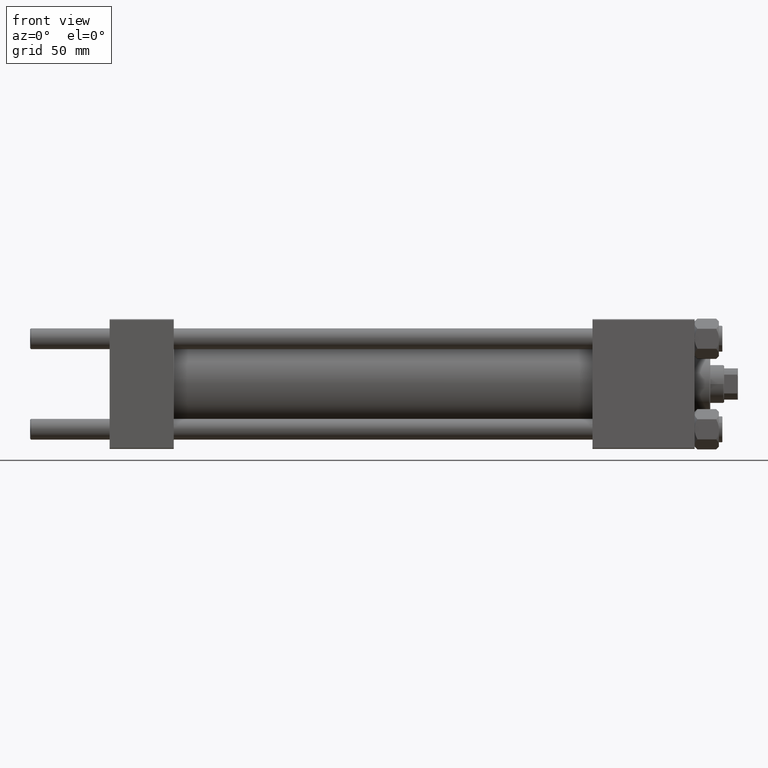
[diagram: clean part render]
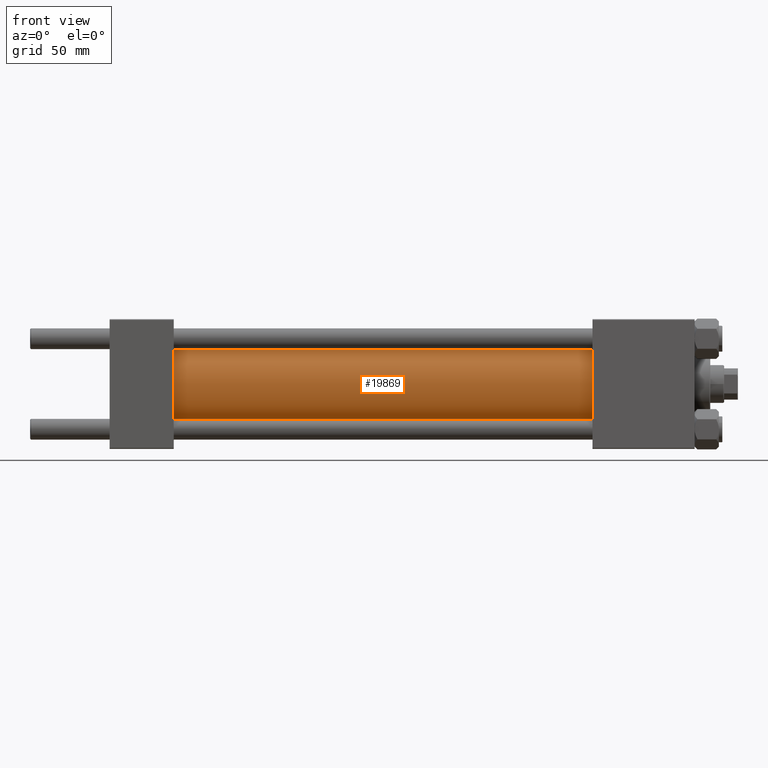
[diagram: same view with one face highlighted and labeled with its STEP entity id]
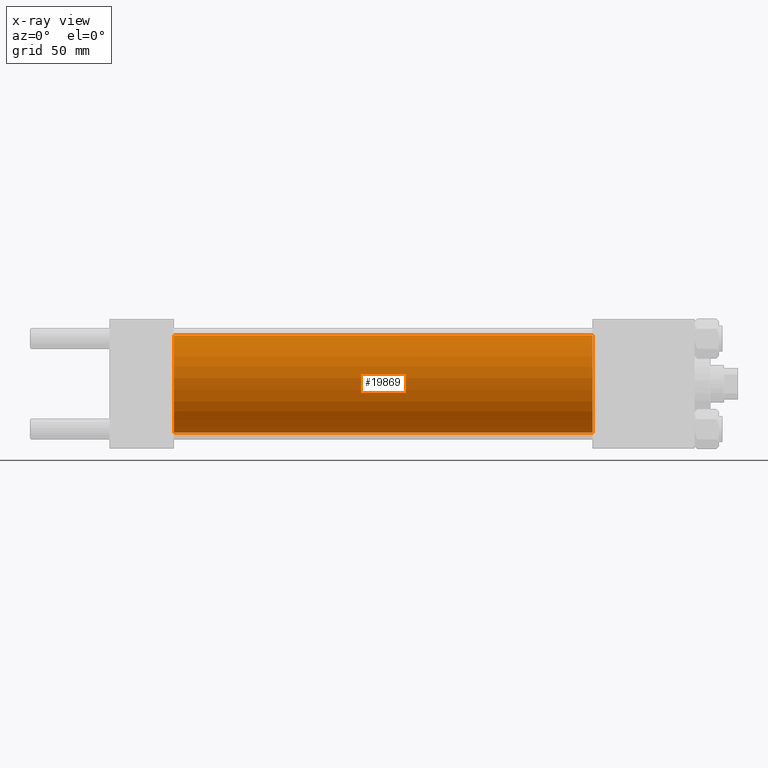
[diagram: x-ray of the same camera — body ghosted, the highlighted face saturated]
A machine part, front view. The second image highlights one B-rep face of the part: STEP entity #19869.
The next image is the same camera in x-ray: the body ghosted, the highlighted face saturated — about 0% of this face is hidden behind the body in this view.
In plain terms, the highlighted cylindrical surface (partial cylindrical patch) has radius 28 mm, axis along (-1, -0, -0).
Its self-contained STEP definition (entity closure, byte-faithful):
#215 = DIRECTION ( 'NONE',  ( -1.000000000000000000, -0.000000000000000000, -0.000000000000000000 ) ) ;
#3991 = CARTESIAN_POINT ( 'NONE',  ( 278.9999999999999432, 0.000000000000000000, 28.00000000000000000 ) ) ;
#4101 = CARTESIAN_POINT ( 'NONE',  ( 278.9999999999999432, 0.000000000000000000, 28.00000000000000000 ) ) ;
#6253 = DIRECTION ( 'NONE',  ( 1.000000000000000000, 0.000000000000000000, 0.000000000000000000 ) ) ;
#10889 = EDGE_LOOP ( 'NONE', ( #49381, #30055, #27624, #30339 ) ) ;
#12034 = CARTESIAN_POINT ( 'NONE',  ( 278.9999999999999432, 0.000000000000000000, 0.000000000000000000 ) ) ;
#12238 = EDGE_CURVE ( 'NONE', #41543, #43699, #24985, .T. ) ;
#13668 = DIRECTION ( 'NONE',  ( -1.000000000000000000, -0.000000000000000000, -0.000000000000000000 ) ) ;
#14747 = CARTESIAN_POINT ( 'NONE',  ( 278.9999999999999432, 3.429011037612589276E-15, -28.00000000000000000 ) ) ;
#16289 = DIRECTION ( 'NONE',  ( 0.000000000000000000, 0.000000000000000000, 1.000000000000000000 ) ) ;
#18047 = VERTEX_POINT ( 'NONE', #4101 ) ;
#19147 = DIRECTION ( 'NONE',  ( 1.000000000000000000, -0.000000000000000000, 0.000000000000000000 ) ) ;
#19869 = ADVANCED_FACE ( 'NONE', ( #20299 ), #47200, .T. ) ;
#20299 = FACE_OUTER_BOUND ( 'NONE', #10889, .T. ) ;
#20661 = CARTESIAN_POINT ( 'NONE',  ( 37.00000000000000711, 0.000000000000000000, 28.00000000000000000 ) ) ;
#21592 = DIRECTION ( 'NONE',  ( 0.000000000000000000, 0.000000000000000000, -1.000000000000000000 ) ) ;
#21595 = CIRCLE ( 'NONE', #30437, 28.00000000000000000 ) ;
#22674 = CARTESIAN_POINT ( 'NONE',  ( 37.00000000000000711, 0.000000000000000000, 0.000000000000000000 ) ) ;
#22846 = LINE ( 'NONE', #3991, #37249 ) ;
#23938 = AXIS2_PLACEMENT_3D ( 'NONE', #40693, #6253, #21592 ) ;
#24985 = LINE ( 'NONE', #40566, #34558 ) ;
#25669 = DIRECTION ( 'NONE',  ( -1.000000000000000000, -0.000000000000000000, -0.000000000000000000 ) ) ;
#27624 = ORIENTED_EDGE ( 'NONE', *, *, #36605, .T. ) ;
#30055 = ORIENTED_EDGE ( 'NONE', *, *, #46575, .F. ) ;
#30339 = ORIENTED_EDGE ( 'NONE', *, *, #48251, .T. ) ;
#30437 = AXIS2_PLACEMENT_3D ( 'NONE', #22674, #19147, #34485 ) ;
#34485 = DIRECTION ( 'NONE',  ( 0.000000000000000000, 0.000000000000000000, 1.000000000000000000 ) ) ;
#34558 = VECTOR ( 'NONE', #13668, 1000.000000000000000 ) ;
#36556 = CARTESIAN_POINT ( 'NONE',  ( 37.00000000000000711, 3.429011037612589276E-15, -28.00000000000000000 ) ) ;
#36605 = EDGE_CURVE ( 'NONE', #18047, #43927, #22846, .T. ) ;
#37249 = VECTOR ( 'NONE', #25669, 1000.000000000000000 ) ;
#40566 = CARTESIAN_POINT ( 'NONE',  ( 278.9999999999999432, 3.429011037612589276E-15, -28.00000000000000000 ) ) ;
#40693 = CARTESIAN_POINT ( 'NONE',  ( 278.9999999999999432, 0.000000000000000000, 0.000000000000000000 ) ) ;
#41543 = VERTEX_POINT ( 'NONE', #14747 ) ;
#43699 = VERTEX_POINT ( 'NONE', #36556 ) ;
#43927 = VERTEX_POINT ( 'NONE', #20661 ) ;
#44822 = CIRCLE ( 'NONE', #23938, 28.00000000000000000 ) ;
#46575 = EDGE_CURVE ( 'NONE', #18047, #41543, #44822, .T. ) ;
#47200 = CYLINDRICAL_SURFACE ( 'NONE', #49126, 28.00000000000000000 ) ;
#48251 = EDGE_CURVE ( 'NONE', #43927, #43699, #21595, .T. ) ;
#49126 = AXIS2_PLACEMENT_3D ( 'NONE', #12034, #215, #16289 ) ;
#49381 = ORIENTED_EDGE ( 'NONE', *, *, #12238, .F. ) ;